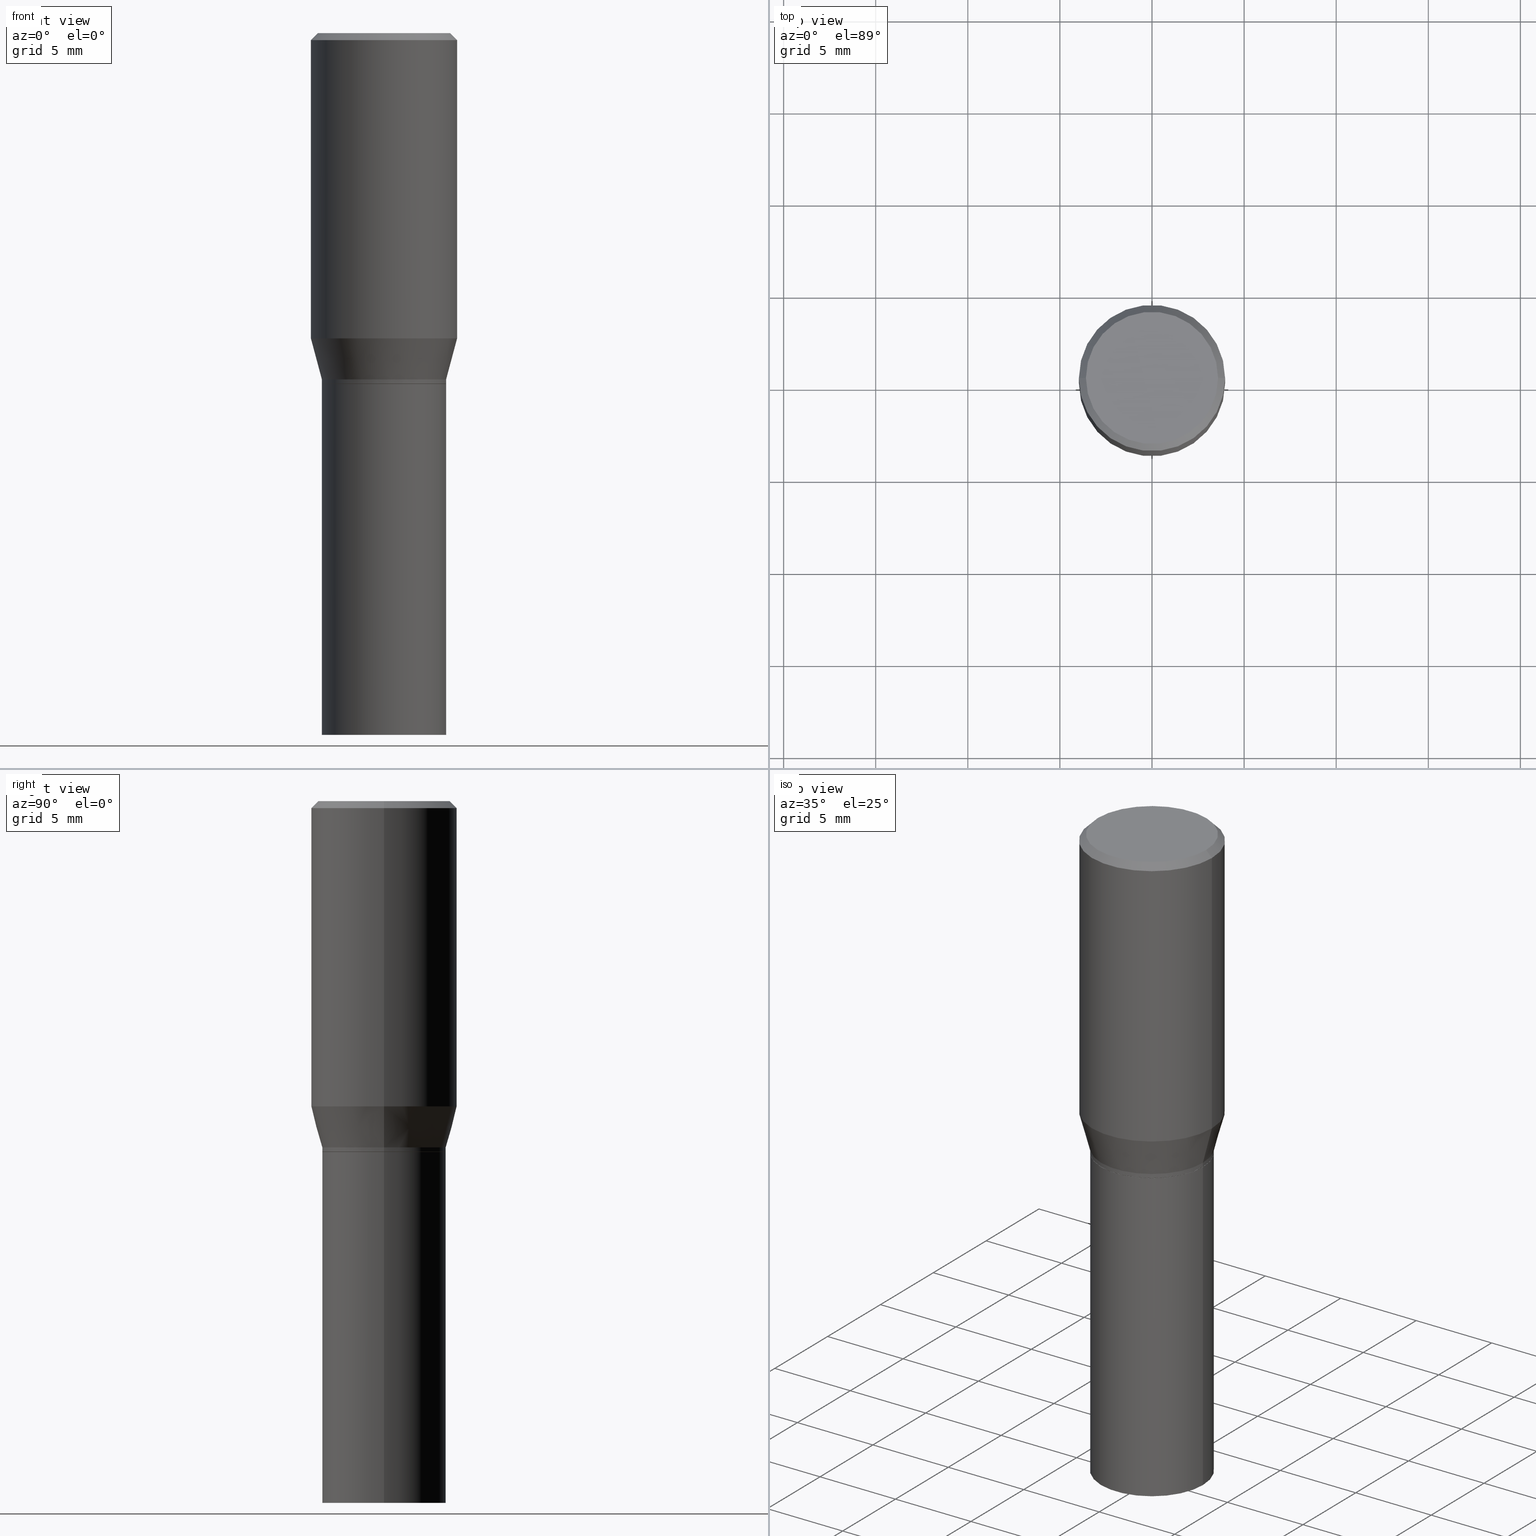
[diagram: canonical four-view strip — front | top / right | iso, engineering-drawing reading convention]
A machine part, canonical four-view strip (front | top / right | iso — engineering-drawing reading convention). The complete STEP part file that produces these views, byte-faithful:
ISO-10303-21;
HEADER;
FILE_DESCRIPTION (( 'STEP AP203' ),
    '1' );
FILE_NAME ('39533.STEP',
    '2024-03-12T19:02:17',
    ( '' ),
    ( '' ),
    'SwSTEP 2.0',
    'SolidWorks 2023',
    '' );
FILE_SCHEMA (( 'CONFIG_CONTROL_DESIGN' ));
ENDSEC;

DATA;
#1 = ADVANCED_FACE ( 'NONE', ( #107 ), #79, .F. ) ;
#2 = CARTESIAN_POINT ( 'NONE',  ( -0.1412500000000000144, 1.012529588264508555E-15, -4.362760153143304915E-17 ) ) ;
#3 = AXIS2_PLACEMENT_3D ( 'NONE', #131, #435, #429 ) ;
#4 = APPROVAL_STATUS ( 'not_yet_approved' ) ;
#5 = VECTOR ( 'NONE', #264, 39.37007874015748143 ) ;
#6 = ORIENTED_EDGE ( 'NONE', *, *, #40, .T. ) ;
#7 = DIRECTION ( 'NONE',  ( -2.445468806185136597E-29, 3.491481338843145583E-15, 1.000000000000000000 ) ) ;
#8 = CARTESIAN_POINT ( 'NONE',  ( 0.1328000000000000569, -3.511033634340664450E-15, -0.7400000000000002132 ) ) ;
#9 = ORIENTED_EDGE ( 'NONE', *, *, #338, .F. ) ;
#10 = CARTESIAN_POINT ( 'NONE',  ( 0.1328000000000000569, -9.273374435967366167E-16, 6.475562758257005110E-30 ) ) ;
#11 = PERSON_AND_ORGANIZATION ( #128, #336 ) ;
#12 = DIRECTION ( 'NONE',  ( 0.000000000000000000, 0.000000000000000000, 1.000000000000000000 ) ) ;
#13 = CARTESIAN_POINT ( 'NONE',  ( 0.000000000000000000, 0.000000000000000000, 0.000000000000000000 ) ) ;
#14 = DATE_AND_TIME ( #373, #393 ) ;
#15 = ORIENTED_EDGE ( 'NONE', *, *, #142, .T. ) ;
#16 = ORIENTED_EDGE ( 'NONE', *, *, #397, .T. ) ;
#17 = ORIENTED_EDGE ( 'NONE', *, *, #430, .T. ) ;
#18 = EDGE_CURVE ( 'NONE', #365, #278, #123, .T. ) ;
#19 = EDGE_CURVE ( 'NONE', #363, #201, #266, .T. ) ;
#20 = ORIENTED_EDGE ( 'NONE', *, *, #390, .F. ) ;
#21 = DIRECTION ( 'NONE',  ( 1.000000000000000000, -6.982962677686263555E-15, 0.000000000000000000 ) ) ;
#22 = CARTESIAN_POINT ( 'NONE',  ( 0.1562500000000000000, -1.091087918388479174E-15, 7.619026212181150377E-30 ) ) ;
#23 = PRODUCT_DEFINITION ( 'UNKNOWN', '', #200, #343 ) ;
#24 = ORIENTED_EDGE ( 'NONE', *, *, #18, .T. ) ;
#25 = APPLICATION_CONTEXT ( 'configuration controlled 3d designs of mechanical parts and assemblies' ) ;
#26 = DIMENSIONAL_EXPONENTS ( 1.000000000000000000, 0.000000000000000000, 0.000000000000000000, 0.000000000000000000, 0.000000000000000000, 0.000000000000000000, 0.000000000000000000 ) ;
#27 = ORIENTED_EDGE ( 'NONE', *, *, #279, .F. ) ;
#28 = ORIENTED_EDGE ( 'NONE', *, *, #315, .T. ) ;
#29 = CIRCLE ( 'NONE', #378, 0.1562500000000000000 ) ;
#30 = CC_DESIGN_PERSON_AND_ORGANIZATION_ASSIGNMENT ( #445, #305, ( #403 ) ) ;
#31 = FACE_OUTER_BOUND ( 'NONE', #385, .T. ) ;
#32 = CARTESIAN_POINT ( 'NONE',  ( 0.1562500000000000000, -3.369221563289251454E-15, -0.6524834085625104141 ) ) ;
#33 = CARTESIAN_POINT ( 'NONE',  ( 1.834101604638852448E-29, -2.618611004132359088E-15, -0.7500000000000001110 ) ) ;
#34 = LINE ( 'NONE', #216, #322 ) ;
#35 = ORIENTED_EDGE ( 'NONE', *, *, #390, .T. ) ;
#36 = CARTESIAN_POINT ( 'NONE',  ( -0.1328000000000000569, -1.404003028965065357E-15, -0.7400000000000002132 ) ) ;
#37 = AXIS2_PLACEMENT_3D ( 'NONE', #294, #454, #68 ) ;
#38 = DIRECTION ( 'NONE',  ( -0.7071067811865595631, 7.493145998870398336E-15, 0.7071067811865354713 ) ) ;
#39 = CARTESIAN_POINT ( 'NONE',  ( 1.066899386337773103E-45, -1.523249566054587316E-31, -4.362760153142606033E-17 ) ) ;
#40 = EDGE_CURVE ( 'NONE', #282, #201, #196, .T. ) ;
#41 = DIRECTION ( 'NONE',  ( -2.438088387897960049E-29, 3.491481338843145188E-15, 1.000000000000000000 ) ) ;
#42 = PERSON_AND_ORGANIZATION_ROLE ( 'design_owner' ) ;
#43 = VERTEX_POINT ( 'NONE', #249 ) ;
#44 = CIRCLE ( 'NONE', #409, 0.1323000000000000009 ) ;
#45 = AXIS2_PLACEMENT_3D ( 'NONE', #427, #147, #141 ) ;
#46 = DIRECTION ( 'NONE',  ( -2.445468806185136597E-29, 3.491481338843145583E-15, 1.000000000000000000 ) ) ;
#47 = EDGE_LOOP ( 'NONE', ( #246, #420, #273, #120 ) ) ;
#48 = DIRECTION ( 'NONE',  ( 1.000000000000000000, 0.000000000000000000, 0.000000000000000000 ) ) ;
#49 = CYLINDRICAL_SURFACE ( 'NONE', #329, 0.1328000000000000569 ) ;
#50 = CIRCLE ( 'NONE', #105, 0.1328000000000000569 ) ;
#51 = CIRCLE ( 'NONE', #304, 0.1562500000000000000 ) ;
#52 = APPROVAL_PERSON_ORGANIZATION ( #54, #396, #166 ) ;
#53 = DATE_TIME_ROLE ( 'classification_date' ) ;
#54 = PERSON_AND_ORGANIZATION ( #128, #336 ) ;
#55 = ORIENTED_EDGE ( 'NONE', *, *, #383, .T. ) ;
#56 = AXIS2_PLACEMENT_3D ( 'NONE', #158, #334, #443 ) ;
#57 = AXIS2_PLACEMENT_3D ( 'NONE', #69, #136, #223 ) ;
#58 = EDGE_CURVE ( 'NONE', #43, #181, #50, .T. ) ;
#59 = APPROVAL ( #411, 'UNSPECIFIED' ) ;
#60 = UNCERTAINTY_MEASURE_WITH_UNIT (LENGTH_MEASURE( 1.000000000000000082E-05 ), #89, 'distance_accuracy_value', 'NONE');
#61 = ADVANCED_FACE ( 'NONE', ( #303 ), #49, .T. ) ;
#62 = ORIENTED_EDGE ( 'NONE', *, *, #18, .F. ) ;
#63 = ORIENTED_EDGE ( 'NONE', *, *, #134, .F. ) ;
#64 = DIRECTION ( 'NONE',  ( -2.445468806185136597E-29, 3.491481338843145583E-15, 1.000000000000000000 ) ) ;
#65 = APPLICATION_CONTEXT ( 'configuration controlled 3d designs of mechanical parts and assemblies' ) ;
#66 = AXIS2_PLACEMENT_3D ( 'NONE', #82, #7, #153 ) ;
#67 = CIRCLE ( 'NONE', #270, 0.1412500000000000144 ) ;
#68 = DIRECTION ( 'NONE',  ( 1.000000000000000000, -6.982962677686267499E-15, 0.000000000000000000 ) ) ;
#69 = CARTESIAN_POINT ( 'NONE',  ( 0.000000000000000000, 0.000000000000000000, 0.000000000000000000 ) ) ;
#70 = CARTESIAN_POINT ( 'NONE',  ( -0.1328000000000000569, 9.436007530894134510E-16, -6.532345799858516735E-30 ) ) ;
#71 = CYLINDRICAL_SURFACE ( 'NONE', #57, 0.1562500000000000000 ) ;
#72 = DIRECTION ( 'NONE',  ( -2.445468806185136597E-29, 3.491481338843145583E-15, 1.000000000000000000 ) ) ;
#73 = CARTESIAN_POINT ( 'NONE',  ( -0.1562500000000000000, 1.110223024625156540E-15, -7.685836078523291160E-30 ) ) ;
#74 = ORIENTED_EDGE ( 'NONE', *, *, #146, .F. ) ;
#75 = DIRECTION ( 'NONE',  ( 1.000000000000000000, -6.982962677686263555E-15, 0.000000000000000000 ) ) ;
#76 = DIRECTION ( 'NONE',  ( 2.445468806185136597E-29, -3.491481338843145583E-15, -1.000000000000000000 ) ) ;
#77 = CARTESIAN_POINT ( 'NONE',  ( 1.595627822192971094E-29, -2.278133644900773069E-15, -0.6524834085625104141 ) ) ;
#78 = CARTESIAN_POINT ( 'NONE',  ( 0.1323000000000000009, -3.542456966390252304E-15, -0.7500000000000001110 ) ) ;
#79 = PLANE ( 'NONE',  #211 ) ;
#80 = PRODUCT ( '39533', '39533', '', ( #407 ) ) ;
#81 = CYLINDRICAL_SURFACE ( 'NONE', #245, 0.1328000000000000014 ) ;
#82 = CARTESIAN_POINT ( 'NONE',  ( 1.066899386337773103E-45, -1.523249566054587316E-31, -4.362760153142606033E-17 ) ) ;
#83 = SHAPE_DEFINITION_REPRESENTATION ( #235, #311 ) ;
#84 = DATE_AND_TIME ( #114, #453 ) ;
#85 = CIRCLE ( 'NONE', #138, 0.1328000000000000569 ) ;
#86 = EDGE_CURVE ( 'NONE', #124, #198, #88, .T. ) ;
#87 = APPROVAL_ROLE ( '' ) ;
#88 = LINE ( 'NONE', #8, #377 ) ;
#89 =( CONVERSION_BASED_UNIT ( 'INCH', #112 ) LENGTH_UNIT ( ) NAMED_UNIT ( #26 ) );
#90 = APPROVAL_DATE_TIME ( #370, #396 ) ;
#91 = ADVANCED_FACE ( 'NONE', ( #154 ), #302, .F. ) ;
#92 = VECTOR ( 'NONE', #185, 39.37007874015748143 ) ;
#93 = ORIENTED_EDGE ( 'NONE', *, *, #19, .T. ) ;
#94 = CARTESIAN_POINT ( 'NONE',  ( -0.1328000000000000014, 9.436007530894130566E-16, -6.532345799858513932E-30 ) ) ;
#95 = PLANE ( 'NONE',  #186 ) ;
#96 = ADVANCED_FACE ( 'NONE', ( #292 ), #150, .T. ) ;
#97 = DIRECTION ( 'NONE',  ( -2.445468806185136597E-29, 3.491481338843145583E-15, 1.000000000000000000 ) ) ;
#98 = CONICAL_SURFACE ( 'NONE', #37, 0.1323000000000000009, 0.7853981633974653764 ) ;
#99 = CC_DESIGN_APPROVAL ( #248, ( #23 ) ) ;
#100 = CARTESIAN_POINT ( 'NONE',  ( 0.000000000000000000, 0.000000000000000000, 0.000000000000000000 ) ) ;
#101 = DIRECTION ( 'NONE',  ( -2.445468806185136597E-29, 3.491481338843145583E-15, 1.000000000000000000 ) ) ;
#102 = DIRECTION ( 'NONE',  ( 2.445468806185136597E-29, -3.491481338843145583E-15, -1.000000000000000000 ) ) ;
#103 = DIRECTION ( 'NONE',  ( -2.445468806185136597E-29, 3.491481338843145583E-15, 1.000000000000000000 ) ) ;
#104 = CARTESIAN_POINT ( 'NONE',  ( 1.832878870235759926E-29, -2.616865263462937979E-15, -0.7495000000000000551 ) ) ;
#105 = AXIS2_PLACEMENT_3D ( 'NONE', #236, #325, #408 ) ;
#106 = VECTOR ( 'NONE', #379, 39.37007874015748143 ) ;
#107 = FACE_OUTER_BOUND ( 'NONE', #464, .T. ) ;
#108 = CC_DESIGN_PERSON_AND_ORGANIZATION_ASSIGNMENT ( #11, #204, ( #200 ) ) ;
#109 = COORDINATED_UNIVERSAL_TIME_OFFSET ( 5, 0, .BEHIND. ) ;
#110 = ADVANCED_FACE ( 'NONE', ( #229 ), #190, .F. ) ;
#111 = ORIENTED_EDGE ( 'NONE', *, *, #243, .T. ) ;
#112 = LENGTH_MEASURE_WITH_UNIT ( LENGTH_MEASURE( 0.02539999999999999897 ), #262 );
#113 = DIRECTION ( 'NONE',  ( -0.2588190451025214611, 5.211531920934550253E-15, 0.9659258262890679791 ) ) ;
#114 = CALENDAR_DATE ( 2024, 12, 3 ) ;
#115 = AXIS2_PLACEMENT_3D ( 'NONE', #33, #254, #391 ) ;
#116 = DATE_AND_TIME ( #441, #368 ) ;
#117 = ORIENTED_EDGE ( 'NONE', *, *, #86, .F. ) ;
#118 = DATE_TIME_ROLE ( 'creation_date' ) ;
#119 = ORIENTED_EDGE ( 'NONE', *, *, #134, .T. ) ;
#120 = ORIENTED_EDGE ( 'NONE', *, *, #142, .F. ) ;
#121 = MANIFOLD_SOLID_BREP ( 'Body-Move/Copy2[2]', #137 ) ;
#122 = COORDINATED_UNIVERSAL_TIME_OFFSET ( 5, 0, .BEHIND. ) ;
#123 = CIRCLE ( 'NONE', #66, 0.1412500000000000144 ) ;
#124 = VERTEX_POINT ( 'NONE', #465 ) ;
#125 = CC_DESIGN_APPROVAL ( #396, ( #200 ) ) ;
#126 = APPROVAL_DATE_TIME ( #14, #248 ) ;
#127 = EDGE_CURVE ( 'NONE', #181, #43, #389, .T. ) ;
#128 = PERSON ( 'UNSPECIFIED', 'UNSPECIFIED', 'UNSPECIFIED', ('UNSPECIFIED'), ('UNSPECIFIED'), ('UNSPECIFIED') ) ;
#129 = ORIENTED_EDGE ( 'NONE', *, *, #359, .F. ) ;
#130 = LOCAL_TIME ( 15, 2, 17.00000000000000000, #122 ) ;
#131 = CARTESIAN_POINT ( 'NONE',  ( 9.273374435967543661E-16, 0.1327999999999973924, -0.7500000000000004441 ) ) ;
#132 = CYLINDRICAL_SURFACE ( 'NONE', #452, 0.1328000000000000014 ) ;
#133 = ADVANCED_FACE ( 'NONE', ( #252 ), #287, .T. ) ;
#134 = EDGE_CURVE ( 'NONE', #384, #310, #258, .T. ) ;
#135 = DIRECTION ( 'NONE',  ( 1.000000000000000000, -6.982962677686265133E-15, 0.000000000000000000 ) ) ;
#136 = DIRECTION ( 'NONE',  ( -2.445468806185136597E-29, 3.491481338843145583E-15, 1.000000000000000000 ) ) ;
#137 = CLOSED_SHELL ( 'NONE', ( #61, #197, #462, #451, #96, #176, #345, #440, #91, #424, #353, #133 ) ) ;
#138 = AXIS2_PLACEMENT_3D ( 'NONE', #458, #72, #155 ) ;
#139 = AXIS2_PLACEMENT_3D ( 'NONE', #374, #12, #48 ) ;
#140 = EDGE_LOOP ( 'NONE', ( #331, #263, #6, #350 ) ) ;
#141 = DIRECTION ( 'NONE',  ( 1.000000000000000000, -6.982962677686265133E-15, 0.000000000000000000 ) ) ;
#142 = EDGE_CURVE ( 'NONE', #212, #181, #184, .T. ) ;
#143 = CARTESIAN_POINT ( 'NONE',  ( 0.000000000000000000, 0.000000000000000000, 0.000000000000000000 ) ) ;
#144 = CARTESIAN_POINT ( 'NONE',  ( 0.000000000000000000, 0.000000000000000000, 0.000000000000000000 ) ) ;
#145 = CARTESIAN_POINT ( 'NONE',  ( 3.668203209277705088E-31, -5.237222008264718399E-17, -0.01499999999999999944 ) ) ;
#146 = EDGE_CURVE ( 'NONE', #43, #191, #257, .T. ) ;
#147 = DIRECTION ( 'NONE',  ( -2.445468806185136597E-29, 3.491481338843145583E-15, 1.000000000000000000 ) ) ;
#148 = DIRECTION ( 'NONE',  ( -2.445468806185136597E-29, 3.491481338843145583E-15, 1.000000000000000000 ) ) ;
#149 = CARTESIAN_POINT ( 'NONE',  ( 1.834101604638852448E-29, -2.618611004132359088E-15, -0.7500000000000001110 ) ) ;
#150 = CONICAL_SURFACE ( 'NONE', #218, 0.1328000000000000569, 0.2617993877991501850 ) ;
#151 = CIRCLE ( 'NONE', #392, 0.1328000000000000014 ) ;
#152 = DIRECTION ( 'NONE',  ( -2.445468806185136597E-29, 3.491481338843145583E-15, 1.000000000000000000 ) ) ;
#153 = DIRECTION ( 'NONE',  ( 1.000000000000000000, -6.982962677686265922E-15, 4.874209154772796007E-29 ) ) ;
#154 = FACE_OUTER_BOUND ( 'NONE', #226, .T. ) ;
#155 = DIRECTION ( 'NONE',  ( 1.000000000000000000, -6.982962677686265133E-15, 0.000000000000000000 ) ) ;
#156 = CARTESIAN_POINT ( 'NONE',  ( 0.1562500000000000000, -1.124325032234449083E-15, -0.01499999999999999944 ) ) ;
#157 = PERSON_AND_ORGANIZATION ( #128, #336 ) ;
#158 = CARTESIAN_POINT ( 'NONE',  ( 9.863434782231852123E-16, 0.1412500000000000144, -5.149855398773074051E-16 ) ) ;
#159 = AXIS2_PLACEMENT_3D ( 'NONE', #400, #239, #135 ) ;
#160 = DIRECTION ( 'NONE',  ( 0.7071067811865483499, -7.319954787623257623E-15, -0.7071067811865466846 ) ) ;
#161 = EDGE_CURVE ( 'NONE', #191, #124, #85, .T. ) ;
#162 = PERSON_AND_ORGANIZATION ( #128, #336 ) ;
#163 = ORIENTED_EDGE ( 'NONE', *, *, #271, .T. ) ;
#164 = ADVANCED_FACE ( 'NONE', ( #205 ), #81, .T. ) ;
#165 = CARTESIAN_POINT ( 'NONE',  ( 3.668203209277705088E-31, -5.237222008264718399E-17, -0.01499999999999999944 ) ) ;
#166 = APPROVAL_ROLE ( '' ) ;
#167 = AXIS2_PLACEMENT_3D ( 'NONE', #423, #351, #286 ) ;
#168 = LINE ( 'NONE', #22, #5 ) ;
#169 = APPROVAL_PERSON_ORGANIZATION ( #272, #59, #87 ) ;
#170 = ORIENTED_EDGE ( 'NONE', *, *, #348, .F. ) ;
#171 = DIRECTION ( 'NONE',  ( -2.445468806185136877E-29, 3.491481338843145188E-15, 1.000000000000000000 ) ) ;
#172 = EDGE_LOOP ( 'NONE', ( #9, #163, #15, #431 ) ) ;
#173 = ORIENTED_EDGE ( 'NONE', *, *, #376, .F. ) ;
#174 = CIRCLE ( 'NONE', #220, 0.1323000000000000009 ) ;
#175 = APPROVAL_PERSON_ORGANIZATION ( #337, #248, #241 ) ;
#176 = ADVANCED_FACE ( 'NONE', ( #225 ), #291, .T. ) ;
#177 = FACE_OUTER_BOUND ( 'NONE', #231, .T. ) ;
#178 = EDGE_CURVE ( 'NONE', #404, #282, #256, .T. ) ;
#179 = DIRECTION ( 'NONE',  ( -2.438088387897960049E-29, 3.491481338843145188E-15, 1.000000000000000000 ) ) ;
#180 = CARTESIAN_POINT ( 'NONE',  ( 0.1328000000000000014, -3.545948447729095705E-15, -0.7500000000000001110 ) ) ;
#181 = VERTEX_POINT ( 'NONE', #314 ) ;
#182 = CC_DESIGN_DATE_AND_TIME_ASSIGNMENT ( #339, #118, ( #23 ) ) ;
#183 = LINE ( 'NONE', #222, #352 ) ;
#184 = LINE ( 'NONE', #78, #439 ) ;
#185 = DIRECTION ( 'NONE',  ( -2.445468806185136877E-29, 3.491481338843145188E-15, 1.000000000000000000 ) ) ;
#186 = AXIS2_PLACEMENT_3D ( 'NONE', #149, #179, #260 ) ;
#187 = DIRECTION ( 'NONE',  ( -2.445468806185136597E-29, 3.491481338843145583E-15, 1.000000000000000000 ) ) ;
#188 = DIRECTION ( 'NONE',  ( 1.000000000000000000, -6.982962677686266711E-15, 4.876176775795935232E-29 ) ) ;
#189 = DIRECTION ( 'NONE',  ( -2.445468806185136877E-29, 3.491481338843145188E-15, 1.000000000000000000 ) ) ;
#190 = PLANE ( 'NONE',  #3 ) ;
#191 = VERTEX_POINT ( 'NONE', #36 ) ;
#192 = CYLINDRICAL_SURFACE ( 'NONE', #240, 0.1562500000000000000 ) ;
#193 = DIRECTION ( 'NONE',  ( 0.2588190451025214611, 1.565188264969620982E-15, 0.9659258262890679791 ) ) ;
#194 = APPLICATION_PROTOCOL_DEFINITION ( 'international standard', 'config_control_design', 1994, #65 ) ;
#195 = CARTESIAN_POINT ( 'NONE',  ( 0.000000000000000000, 0.000000000000000000, 0.000000000000000000 ) ) ;
#196 = LINE ( 'NONE', #388, #321 ) ;
#197 = ADVANCED_FACE ( 'NONE', ( #355 ), #98, .T. ) ;
#198 = VERTEX_POINT ( 'NONE', #32 ) ;
#199 = CONICAL_SURFACE ( 'NONE', #284, 0.1562500000000000000, 0.7853981633974495002 ) ;
#200 = PRODUCT_DEFINITION_FORMATION_WITH_SPECIFIED_SOURCE ( 'ANY', '', #80, .NOT_KNOWN. ) ;
#201 = VERTEX_POINT ( 'NONE', #180 ) ;
#202 = CARTESIAN_POINT ( 'NONE',  ( 0.1412500000000000144, -1.046685187209839144E-15, -4.362760153141894826E-17 ) ) ;
#203 = COORDINATED_UNIVERSAL_TIME_OFFSET ( 5, 0, .BEHIND. ) ;
#204 = PERSON_AND_ORGANIZATION_ROLE ( 'creator' ) ;
#205 = FACE_OUTER_BOUND ( 'NONE', #140, .T. ) ;
#206 = LINE ( 'NONE', #156, #313 ) ;
#207 = AXIS2_PLACEMENT_3D ( 'NONE', #301, #46, #253 ) ;
#208 = ORIENTED_EDGE ( 'NONE', *, *, #279, .T. ) ;
#209 = COORDINATED_UNIVERSAL_TIME_OFFSET ( 5, 0, .BEHIND. ) ;
#210 = ORIENTED_EDGE ( 'NONE', *, *, #450, .T. ) ;
#211 = AXIS2_PLACEMENT_3D ( 'NONE', #238, #41, #269 ) ;
#212 = VERTEX_POINT ( 'NONE', #319 ) ;
#213 = CONICAL_SURFACE ( 'NONE', #461, 0.1562500000000000000, 0.7853981633974495002 ) ;
#214 = CARTESIAN_POINT ( 'NONE',  ( 3.668203209277704895E-29, -5.237222008264718177E-15, -1.500000000000000222 ) ) ;
#215 = EDGE_LOOP ( 'NONE', ( #459, #35, #16, #63 ) ) ;
#216 = CARTESIAN_POINT ( 'NONE',  ( -0.1323000000000000009, -1.678562964721746930E-15, -0.7500000000000001110 ) ) ;
#217 = EDGE_LOOP ( 'NONE', ( #55, #210, #448, #312 ) ) ;
#218 = AXIS2_PLACEMENT_3D ( 'NONE', #463, #97, #296 ) ;
#219 = DIRECTION ( 'NONE',  ( 1.000000000000000000, -6.982962677686266711E-15, 0.000000000000000000 ) ) ;
#220 = AXIS2_PLACEMENT_3D ( 'NONE', #251, #457, #360 ) ;
#221 = DIRECTION ( 'NONE',  ( 1.000000000000000000, -6.982962677686266711E-15, 4.876176775795935232E-29 ) ) ;
#222 = CARTESIAN_POINT ( 'NONE',  ( -0.1328000000000000569, -1.640095437654514777E-15, -0.7400000000000002132 ) ) ;
#223 = DIRECTION ( 'NONE',  ( 1.000000000000000000, -6.982962677686266711E-15, 4.876176775795936353E-29 ) ) ;
#224 = DIRECTION ( 'NONE',  ( -2.445468806185136877E-29, 3.491481338843145188E-15, 1.000000000000000000 ) ) ;
#225 = FACE_OUTER_BOUND ( 'NONE', #405, .T. ) ;
#226 = EDGE_LOOP ( 'NONE', ( #300, #24 ) ) ;
#227 = DIRECTION ( 'NONE',  ( -2.445468806185136597E-29, 3.491481338843145583E-15, 1.000000000000000000 ) ) ;
#228 = DIRECTION ( 'NONE',  ( -1.000000000000000000, 6.982962677686266711E-15, 0.000000000000000000 ) ) ;
#229 = FACE_OUTER_BOUND ( 'NONE', #293, .T. ) ;
#230 = CARTESIAN_POINT ( 'NONE',  ( 0.1562500000000000000, -1.143460138471126253E-15, -0.01499999999999999944 ) ) ;
#231 = EDGE_LOOP ( 'NONE', ( #349, #399 ) ) ;
#232 = DIRECTION ( 'NONE',  ( 1.000000000000000000, -6.982962677686267499E-15, 0.000000000000000000 ) ) ;
#233 = ADVANCED_FACE ( 'NONE', ( #289 ), #132, .T. ) ;
#234 = DIRECTION ( 'NONE',  ( 1.000000000000000000, -6.982962677686268288E-15, 0.000000000000000000 ) ) ;
#235 = PRODUCT_DEFINITION_SHAPE ( 'NONE', 'NONE',  #23 ) ;
#236 = CARTESIAN_POINT ( 'NONE',  ( 1.832878870235759926E-29, -2.616865263462937979E-15, -0.7495000000000000551 ) ) ;
#237 = AXIS2_PLACEMENT_3D ( 'NONE', #100, #387, #317 ) ;
#238 = CARTESIAN_POINT ( 'NONE',  ( 3.576687321579069994E-29, -5.368277968210015545E-15, -1.500000000000000222 ) ) ;
#239 = DIRECTION ( 'NONE',  ( -2.445468806185136597E-29, 3.491481338843145583E-15, 1.000000000000000000 ) ) ;
#240 = AXIS2_PLACEMENT_3D ( 'NONE', #144, #152, #295 ) ;
#241 = APPROVAL_ROLE ( '' ) ;
#242 = ORIENTED_EDGE ( 'NONE', *, *, #397, .F. ) ;
#243 = EDGE_CURVE ( 'NONE', #124, #191, #401, .T. ) ;
#244 = AXIS2_PLACEMENT_3D ( 'NONE', #324, #103, #234 ) ;
#245 = AXIS2_PLACEMENT_3D ( 'NONE', #13, #375, #288 ) ;
#246 = ORIENTED_EDGE ( 'NONE', *, *, #406, .T. ) ;
#247 = CARTESIAN_POINT ( 'NONE',  ( -0.1562500000000000000, -5.502990786655347834E-17, -0.01499999999999999944 ) ) ;
#248 = APPROVAL ( #4, 'UNSPECIFIED' ) ;
#249 = CARTESIAN_POINT ( 'NONE',  ( -0.1328000000000000569, -1.673264510373524331E-15, -0.7495000000000000551 ) ) ;
#250 = PRODUCT_RELATED_PRODUCT_CATEGORY ( 'detail', '', ( #80 ) ) ;
#251 = CARTESIAN_POINT ( 'NONE',  ( 1.834101604638852448E-29, -2.618611004132359088E-15, -0.7500000000000001110 ) ) ;
#252 = FACE_OUTER_BOUND ( 'NONE', #268, .T. ) ;
#253 = DIRECTION ( 'NONE',  ( 1.000000000000000000, -6.982962677686268288E-15, 0.000000000000000000 ) ) ;
#254 = DIRECTION ( 'NONE',  ( -2.445468806185136597E-29, 3.491481338843145583E-15, 1.000000000000000000 ) ) ;
#255 = DIRECTION ( 'NONE',  ( 1.000000000000000000, -6.982962677686265922E-15, 4.874209154772796007E-29 ) ) ;
#256 = CIRCLE ( 'NONE', #344, 0.1328000000000000014 ) ;
#257 = LINE ( 'NONE', #70, #267 ) ;
#258 = CIRCLE ( 'NONE', #335, 0.1562500000000000000 ) ;
#259 = CC_DESIGN_PERSON_AND_ORGANIZATION_ASSIGNMENT ( #412, #42, ( #80 ) ) ;
#260 = DIRECTION ( 'NONE',  ( 1.000000000000000000, -6.982962677686265922E-15, 4.876176775795935793E-29 ) ) ;
#261 = VERTEX_POINT ( 'NONE', #432 ) ;
#262 =( LENGTH_UNIT ( ) NAMED_UNIT ( * ) SI_UNIT ( $, .METRE. ) );
#263 = ORIENTED_EDGE ( 'NONE', *, *, #178, .T. ) ;
#264 = DIRECTION ( 'NONE',  ( -2.445468806185136877E-29, 3.491481338843145188E-15, 1.000000000000000000 ) ) ;
#265 = DIRECTION ( 'NONE',  ( 1.000000000000000000, -6.982962677686268288E-15, 0.000000000000000000 ) ) ;
#266 = CIRCLE ( 'NONE', #207, 0.1328000000000000014 ) ;
#267 = VECTOR ( 'NONE', #224, 39.37007874015748143 ) ;
#268 = EDGE_LOOP ( 'NONE', ( #74, #386, #208, #340 ) ) ;
#269 = DIRECTION ( 'NONE',  ( 1.000000000000000000, -6.982962677686265922E-15, 4.876176775795935793E-29 ) ) ;
#270 = AXIS2_PLACEMENT_3D ( 'NONE', #39, #394, #255 ) ;
#271 = EDGE_CURVE ( 'NONE', #261, #212, #44, .T. ) ;
#272 = PERSON_AND_ORGANIZATION ( #128, #336 ) ;
#273 = ORIENTED_EDGE ( 'NONE', *, *, #127, .F. ) ;
#274 = EDGE_LOOP ( 'NONE', ( #444, #28, #422, #242 ) ) ;
#275 = EDGE_LOOP ( 'NONE', ( #62, #410, #419, #346 ) ) ;
#276 = CALENDAR_DATE ( 2024, 12, 3 ) ;
#277 = EDGE_CURVE ( 'NONE', #278, #384, #434, .T. ) ;
#278 = VERTEX_POINT ( 'NONE', #2 ) ;
#279 = EDGE_CURVE ( 'NONE', #181, #124, #438, .T. ) ;
#280 = PERSON_AND_ORGANIZATION_ROLE ( 'creator' ) ;
#281 = MANIFOLD_SOLID_BREP ( 'Body-Move/Copy2[1]', #361 ) ;
#282 = VERTEX_POINT ( 'NONE', #342 ) ;
#283 = DIRECTION ( 'NONE',  ( -2.445468806185136597E-29, 3.491481338843145583E-15, 1.000000000000000000 ) ) ;
#284 = AXIS2_PLACEMENT_3D ( 'NONE', #290, #102, #228 ) ;
#285 = CC_DESIGN_SECURITY_CLASSIFICATION ( #403, ( #200 ) ) ;
#286 = DIRECTION ( 'NONE',  ( 1.000000000000000000, -6.982962677686265133E-15, 0.000000000000000000 ) ) ;
#287 = CYLINDRICAL_SURFACE ( 'NONE', #237, 0.1328000000000000569 ) ;
#288 = DIRECTION ( 'NONE',  ( 1.000000000000000000, -6.982962677686266711E-15, 4.876176775795935232E-29 ) ) ;
#289 = FACE_OUTER_BOUND ( 'NONE', #217, .T. ) ;
#290 = CARTESIAN_POINT ( 'NONE',  ( 3.668203209277705088E-31, -5.237222008264718399E-17, -0.01499999999999999944 ) ) ;
#291 = CONICAL_SURFACE ( 'NONE', #159, 0.1328000000000000569, 0.2617993877991501850 ) ;
#292 = FACE_OUTER_BOUND ( 'NONE', #356, .T. ) ;
#293 = EDGE_LOOP ( 'NONE', ( #17, #93 ) ) ;
#294 = CARTESIAN_POINT ( 'NONE',  ( 1.834101604638852448E-29, -2.618611004132359088E-15, -0.7500000000000001110 ) ) ;
#295 = DIRECTION ( 'NONE',  ( 1.000000000000000000, -6.982962677686266711E-15, 4.876176775795936353E-29 ) ) ;
#296 = DIRECTION ( 'NONE',  ( 1.000000000000000000, -6.982962677686265133E-15, 0.000000000000000000 ) ) ;
#297 = ORIENTED_EDGE ( 'NONE', *, *, #178, .F. ) ;
#298 = DIRECTION ( 'NONE',  ( 1.000000000000000000, -6.982962677686265133E-15, 0.000000000000000000 ) ) ;
#299 = APPLICATION_PROTOCOL_DEFINITION ( 'international standard', 'config_control_design', 1994, #25 ) ;
#300 = ORIENTED_EDGE ( 'NONE', *, *, #449, .T. ) ;
#301 = CARTESIAN_POINT ( 'NONE',  ( 1.834101604638852448E-29, -2.618611004132359088E-15, -0.7500000000000001110 ) ) ;
#302 = PLANE ( 'NONE',  #56 ) ;
#303 = FACE_OUTER_BOUND ( 'NONE', #323, .T. ) ;
#304 = AXIS2_PLACEMENT_3D ( 'NONE', #165, #283, #395 ) ;
#305 = PERSON_AND_ORGANIZATION_ROLE ( 'classification_officer' ) ;
#306 = CALENDAR_DATE ( 2024, 12, 3 ) ;
#307 = CARTESIAN_POINT ( 'NONE',  ( -0.1328000000000000014, -2.984315753109125576E-15, -0.7500000000000001110 ) ) ;
#308 = EDGE_CURVE ( 'NONE', #310, #384, #51, .T. ) ;
#309 = VECTOR ( 'NONE', #332, 39.37007874015748143 ) ;
#310 = VERTEX_POINT ( 'NONE', #230 ) ;
#311 = ADVANCED_BREP_SHAPE_REPRESENTATION ( '39533', ( #281, #121, #139 ), #428 ) ;
#312 = ORIENTED_EDGE ( 'NONE', *, *, #40, .F. ) ;
#313 = VECTOR ( 'NONE', #160, 39.37007874015748143 ) ;
#314 = CARTESIAN_POINT ( 'NONE',  ( 0.1328000000000000569, -3.544202707059674202E-15, -0.7495000000000000551 ) ) ;
#315 = EDGE_CURVE ( 'NONE', #415, #384, #358, .T. ) ;
#316 = FACE_OUTER_BOUND ( 'NONE', #275, .T. ) ;
#317 = DIRECTION ( 'NONE',  ( 1.000000000000000000, -6.982962677686266711E-15, 4.876176775795935232E-29 ) ) ;
#318 = ORIENTED_EDGE ( 'NONE', *, *, #86, .T. ) ;
#319 = CARTESIAN_POINT ( 'NONE',  ( 0.1323000000000000009, -3.542456966390252304E-15, -0.7500000000000001110 ) ) ;
#320 = DIRECTION ( 'NONE',  ( -1.000000000000000000, 6.982962677686266711E-15, 0.000000000000000000 ) ) ;
#321 = VECTOR ( 'NONE', #171, 39.37007874015748143 ) ;
#322 = VECTOR ( 'NONE', #38, 39.37007874015748143 ) ;
#323 = EDGE_LOOP ( 'NONE', ( #413, #369, #328, #27 ) ) ;
#324 = CARTESIAN_POINT ( 'NONE',  ( 1.834101604638852448E-29, -2.618611004132359088E-15, -0.7500000000000001110 ) ) ;
#325 = DIRECTION ( 'NONE',  ( -2.445468806185136597E-29, 3.491481338843145583E-15, 1.000000000000000000 ) ) ;
#326 = FACE_OUTER_BOUND ( 'NONE', #215, .T. ) ;
#327 = CARTESIAN_POINT ( 'NONE',  ( -0.1328000000000000014, -2.984315753109125576E-15, -1.500000000000000222 ) ) ;
#328 = ORIENTED_EDGE ( 'NONE', *, *, #243, .F. ) ;
#329 = AXIS2_PLACEMENT_3D ( 'NONE', #195, #227, #188 ) ;
#330 = VECTOR ( 'NONE', #189, 39.37007874015748143 ) ;
#331 = ORIENTED_EDGE ( 'NONE', *, *, #450, .F. ) ;
#332 = DIRECTION ( 'NONE',  ( -0.7071067811865483499, 2.468850131082265738E-15, -0.7071067811865466846 ) ) ;
#333 = CARTESIAN_POINT ( 'NONE',  ( -0.1562500000000000000, 1.038715698305832094E-15, -0.01499999999999999944 ) ) ;
#334 = DIRECTION ( 'NONE',  ( 2.438088387897960049E-29, -3.491481338843145188E-15, -1.000000000000000000 ) ) ;
#335 = AXIS2_PLACEMENT_3D ( 'NONE', #402, #64, #219 ) ;
#336 = ORGANIZATION ( 'UNSPECIFIED', 'UNSPECIFIED', '' ) ;
#337 = PERSON_AND_ORGANIZATION ( #128, #336 ) ;
#338 = EDGE_CURVE ( 'NONE', #261, #43, #34, .T. ) ;
#339 = DATE_AND_TIME ( #306, #417 ) ;
#340 = ORIENTED_EDGE ( 'NONE', *, *, #161, .F. ) ;
#341 = ORIENTED_EDGE ( 'NONE', *, *, #359, .T. ) ;
#342 = CARTESIAN_POINT ( 'NONE',  ( 0.1328000000000000014, -6.164559451861454793E-15, -1.500000000000000222 ) ) ;
#343 = DESIGN_CONTEXT ( 'detailed design', #65, 'design' ) ;
#344 = AXIS2_PLACEMENT_3D ( 'NONE', #366, #187, #75 ) ;
#345 = ADVANCED_FACE ( 'NONE', ( #326 ), #192, .T. ) ;
#346 = ORIENTED_EDGE ( 'NONE', *, *, #277, .F. ) ;
#347 = DIRECTION ( 'NONE',  ( -2.445468806185136597E-29, 3.491481338843145583E-15, 1.000000000000000000 ) ) ;
#348 = EDGE_CURVE ( 'NONE', #198, #415, #29, .T. ) ;
#349 = ORIENTED_EDGE ( 'NONE', *, *, #406, .F. ) ;
#350 = ORIENTED_EDGE ( 'NONE', *, *, #19, .F. ) ;
#351 = DIRECTION ( 'NONE',  ( -2.445468806185136597E-29, 3.491481338843145583E-15, 1.000000000000000000 ) ) ;
#352 = VECTOR ( 'NONE', #113, 39.37007874015748143 ) ;
#353 = ADVANCED_FACE ( 'NONE', ( #357 ), #421, .T. ) ;
#354 = CARTESIAN_POINT ( 'NONE',  ( 1.834101604638852448E-29, -2.618611004132359088E-15, -0.7500000000000001110 ) ) ;
#355 = FACE_OUTER_BOUND ( 'NONE', #47, .T. ) ;
#356 = EDGE_LOOP ( 'NONE', ( #111, #341, #170, #117 ) ) ;
#357 = FACE_OUTER_BOUND ( 'NONE', #172, .T. ) ;
#358 = LINE ( 'NONE', #73, #92 ) ;
#359 = EDGE_CURVE ( 'NONE', #191, #415, #183, .T. ) ;
#360 = DIRECTION ( 'NONE',  ( 1.000000000000000000, -6.982962677686267499E-15, 0.000000000000000000 ) ) ;
#361 = CLOSED_SHELL ( 'NONE', ( #233, #1, #164, #110 ) ) ;
#362 = CC_DESIGN_APPROVAL ( #59, ( #403 ) ) ;
#363 = VERTEX_POINT ( 'NONE', #307 ) ;
#364 = DIRECTION ( 'NONE',  ( 0.7071067811865595631, -2.468850131082382884E-15, 0.7071067811865354713 ) ) ;
#365 = VERTEX_POINT ( 'NONE', #202 ) ;
#366 = CARTESIAN_POINT ( 'NONE',  ( 3.668203209277704895E-29, -5.237222008264718177E-15, -1.500000000000000222 ) ) ;
#367 = ORIENTED_EDGE ( 'NONE', *, *, #277, .T. ) ;
#368 = LOCAL_TIME ( 15, 2, 17.00000000000000000, #209 ) ;
#369 = ORIENTED_EDGE ( 'NONE', *, *, #146, .T. ) ;
#370 = DATE_AND_TIME ( #276, #130 ) ;
#371 =( NAMED_UNIT ( * ) PLANE_ANGLE_UNIT ( ) SI_UNIT ( $, .RADIAN. ) );
#372 = CC_DESIGN_PERSON_AND_ORGANIZATION_ASSIGNMENT ( #162, #280, ( #23 ) ) ;
#373 = CALENDAR_DATE ( 2024, 12, 3 ) ;
#374 = CARTESIAN_POINT ( 'NONE',  ( 0.000000000000000000, 0.000000000000000000, 0.000000000000000000 ) ) ;
#375 = DIRECTION ( 'NONE',  ( -2.445468806185136597E-29, 3.491481338843145583E-15, 1.000000000000000000 ) ) ;
#376 = EDGE_CURVE ( 'NONE', #365, #310, #206, .T. ) ;
#377 = VECTOR ( 'NONE', #193, 39.37007874015748143 ) ;
#378 = AXIS2_PLACEMENT_3D ( 'NONE', #77, #148, #298 ) ;
#379 = DIRECTION ( 'NONE',  ( -2.445468806185136877E-29, 3.491481338843145188E-15, 1.000000000000000000 ) ) ;
#380 = PERSON_AND_ORGANIZATION_ROLE ( 'design_supplier' ) ;
#381 = CC_DESIGN_DATE_AND_TIME_ASSIGNMENT ( #116, #53, ( #403 ) ) ;
#382 = ORIENTED_EDGE ( 'NONE', *, *, #161, .T. ) ;
#383 = EDGE_CURVE ( 'NONE', #282, #404, #151, .T. ) ;
#384 = VERTEX_POINT ( 'NONE', #247 ) ;
#385 = EDGE_LOOP ( 'NONE', ( #173, #446, #367, #119 ) ) ;
#386 = ORIENTED_EDGE ( 'NONE', *, *, #58, .T. ) ;
#387 = DIRECTION ( 'NONE',  ( -2.445468806185136597E-29, 3.491481338843145583E-15, 1.000000000000000000 ) ) ;
#388 = CARTESIAN_POINT ( 'NONE',  ( 0.1328000000000000014, -9.273374435967362223E-16, 6.475562758257002307E-30 ) ) ;
#389 = CIRCLE ( 'NONE', #426, 0.1328000000000000569 ) ;
#390 = EDGE_CURVE ( 'NONE', #415, #198, #416, .T. ) ;
#391 = DIRECTION ( 'NONE',  ( 1.000000000000000000, -6.982962677686267499E-15, 0.000000000000000000 ) ) ;
#392 = AXIS2_PLACEMENT_3D ( 'NONE', #214, #347, #21 ) ;
#393 = LOCAL_TIME ( 15, 2, 17.00000000000000000, #109 ) ;
#394 = DIRECTION ( 'NONE',  ( -2.445468806185136597E-29, 3.491481338843145583E-15, 1.000000000000000000 ) ) ;
#395 = DIRECTION ( 'NONE',  ( 1.000000000000000000, -6.982962677686266711E-15, 0.000000000000000000 ) ) ;
#396 = APPROVAL ( #414, 'UNSPECIFIED' ) ;
#397 = EDGE_CURVE ( 'NONE', #198, #310, #168, .T. ) ;
#398 = ORIENTED_EDGE ( 'NONE', *, *, #383, .F. ) ;
#399 = ORIENTED_EDGE ( 'NONE', *, *, #271, .F. ) ;
#400 = CARTESIAN_POINT ( 'NONE',  ( 1.809646916577001463E-29, -2.583696190743928228E-15, -0.7400000000000002132 ) ) ;
#401 = CIRCLE ( 'NONE', #45, 0.1328000000000000569 ) ;
#402 = CARTESIAN_POINT ( 'NONE',  ( 3.668203209277705088E-31, -5.237222008264718399E-17, -0.01499999999999999944 ) ) ;
#403 = SECURITY_CLASSIFICATION ( '', '', #418 ) ;
#404 = VERTEX_POINT ( 'NONE', #327 ) ;
#405 = EDGE_LOOP ( 'NONE', ( #129, #382, #318, #20 ) ) ;
#406 = EDGE_CURVE ( 'NONE', #212, #261, #174, .T. ) ;
#407 = MECHANICAL_CONTEXT ( 'NONE', #25, 'mechanical' ) ;
#408 = DIRECTION ( 'NONE',  ( 1.000000000000000000, -6.982962677686268288E-15, 0.000000000000000000 ) ) ;
#409 = AXIS2_PLACEMENT_3D ( 'NONE', #354, #101, #232 ) ;
#410 = ORIENTED_EDGE ( 'NONE', *, *, #376, .T. ) ;
#411 = APPROVAL_STATUS ( 'not_yet_approved' ) ;
#412 = PERSON_AND_ORGANIZATION ( #128, #336 ) ;
#413 = ORIENTED_EDGE ( 'NONE', *, *, #127, .T. ) ;
#414 = APPROVAL_STATUS ( 'not_yet_approved' ) ;
#415 = VERTEX_POINT ( 'NONE', #455 ) ;
#416 = CIRCLE ( 'NONE', #167, 0.1562500000000000000 ) ;
#417 = LOCAL_TIME ( 15, 2, 17.00000000000000000, #447 ) ;
#418 = SECURITY_CLASSIFICATION_LEVEL ( 'unclassified' ) ;
#419 = ORIENTED_EDGE ( 'NONE', *, *, #308, .T. ) ;
#420 = ORIENTED_EDGE ( 'NONE', *, *, #338, .T. ) ;
#421 = CONICAL_SURFACE ( 'NONE', #115, 0.1323000000000000009, 0.7853981633974653764 ) ;
#422 = ORIENTED_EDGE ( 'NONE', *, *, #308, .F. ) ;
#423 = CARTESIAN_POINT ( 'NONE',  ( 1.595627822192971094E-29, -2.278133644900773069E-15, -0.6524834085625104141 ) ) ;
#424 = ADVANCED_FACE ( 'NONE', ( #177 ), #95, .F. ) ;
#425 = DIRECTION ( 'NONE',  ( -2.445468806185136597E-29, 3.491481338843145583E-15, 1.000000000000000000 ) ) ;
#426 = AXIS2_PLACEMENT_3D ( 'NONE', #104, #425, #265 ) ;
#427 = CARTESIAN_POINT ( 'NONE',  ( 1.809646916577001463E-29, -2.583696190743928228E-15, -0.7400000000000002132 ) ) ;
#428 =( GEOMETRIC_REPRESENTATION_CONTEXT ( 3 ) GLOBAL_UNCERTAINTY_ASSIGNED_CONTEXT ( ( #60 ) ) GLOBAL_UNIT_ASSIGNED_CONTEXT ( ( #89, #371, #437 ) ) REPRESENTATION_CONTEXT ( 'NONE', 'WORKASPACE' ) );
#429 = DIRECTION ( 'NONE',  ( -1.000000000000000000, 6.982962677686265922E-15, -4.876176775795935793E-29 ) ) ;
#430 = EDGE_CURVE ( 'NONE', #201, #363, #436, .T. ) ;
#431 = ORIENTED_EDGE ( 'NONE', *, *, #58, .F. ) ;
#432 = CARTESIAN_POINT ( 'NONE',  ( -0.1323000000000000009, -1.675913737547635335E-15, -0.7500000000000001110 ) ) ;
#433 = LINE ( 'NONE', #94, #330 ) ;
#434 = LINE ( 'NONE', #333, #309 ) ;
#435 = DIRECTION ( 'NONE',  ( 2.438088387897960049E-29, -3.491481338843145188E-15, -1.000000000000000000 ) ) ;
#436 = CIRCLE ( 'NONE', #244, 0.1328000000000000014 ) ;
#437 =( NAMED_UNIT ( * ) SI_UNIT ( $, .STERADIAN. ) SOLID_ANGLE_UNIT ( ) );
#438 = LINE ( 'NONE', #10, #106 ) ;
#439 = VECTOR ( 'NONE', #364, 39.37007874015748143 ) ;
#440 = ADVANCED_FACE ( 'NONE', ( #31 ), #213, .T. ) ;
#441 = CALENDAR_DATE ( 2024, 12, 3 ) ;
#442 = APPROVAL_DATE_TIME ( #84, #59 ) ;
#443 = DIRECTION ( 'NONE',  ( -1.000000000000000000, 6.982962677686265922E-15, -4.876176775795935793E-29 ) ) ;
#444 = ORIENTED_EDGE ( 'NONE', *, *, #348, .T. ) ;
#445 = PERSON_AND_ORGANIZATION ( #128, #336 ) ;
#446 = ORIENTED_EDGE ( 'NONE', *, *, #449, .F. ) ;
#447 = COORDINATED_UNIVERSAL_TIME_OFFSET ( 5, 0, .BEHIND. ) ;
#448 = ORIENTED_EDGE ( 'NONE', *, *, #430, .F. ) ;
#449 = EDGE_CURVE ( 'NONE', #278, #365, #67, .T. ) ;
#450 = EDGE_CURVE ( 'NONE', #404, #363, #433, .T. ) ;
#451 = ADVANCED_FACE ( 'NONE', ( #466 ), #71, .T. ) ;
#452 = AXIS2_PLACEMENT_3D ( 'NONE', #143, #460, #221 ) ;
#453 = LOCAL_TIME ( 15, 2, 17.00000000000000000, #203 ) ;
#454 = DIRECTION ( 'NONE',  ( -2.445468806185136597E-29, 3.491481338843145583E-15, 1.000000000000000000 ) ) ;
#455 = CARTESIAN_POINT ( 'NONE',  ( -0.1562500000000000000, -1.167910620275616332E-15, -0.6524834085625104141 ) ) ;
#456 = CC_DESIGN_PERSON_AND_ORGANIZATION_ASSIGNMENT ( #157, #380, ( #200 ) ) ;
#457 = DIRECTION ( 'NONE',  ( -2.445468806185136597E-29, 3.491481338843145583E-15, 1.000000000000000000 ) ) ;
#458 = CARTESIAN_POINT ( 'NONE',  ( 1.809646916577001463E-29, -2.583696190743928228E-15, -0.7400000000000002132 ) ) ;
#459 = ORIENTED_EDGE ( 'NONE', *, *, #315, .F. ) ;
#460 = DIRECTION ( 'NONE',  ( -2.445468806185136597E-29, 3.491481338843145583E-15, 1.000000000000000000 ) ) ;
#461 = AXIS2_PLACEMENT_3D ( 'NONE', #145, #76, #320 ) ;
#462 = ADVANCED_FACE ( 'NONE', ( #316 ), #199, .T. ) ;
#463 = CARTESIAN_POINT ( 'NONE',  ( 1.809646916577001463E-29, -2.583696190743928228E-15, -0.7400000000000002132 ) ) ;
#464 = EDGE_LOOP ( 'NONE', ( #398, #297 ) ) ;
#465 = CARTESIAN_POINT ( 'NONE',  ( 0.1328000000000000569, -3.511033634340664450E-15, -0.7400000000000002132 ) ) ;
#466 = FACE_OUTER_BOUND ( 'NONE', #274, .T. ) ;
ENDSEC;
END-ISO-10303-21;
